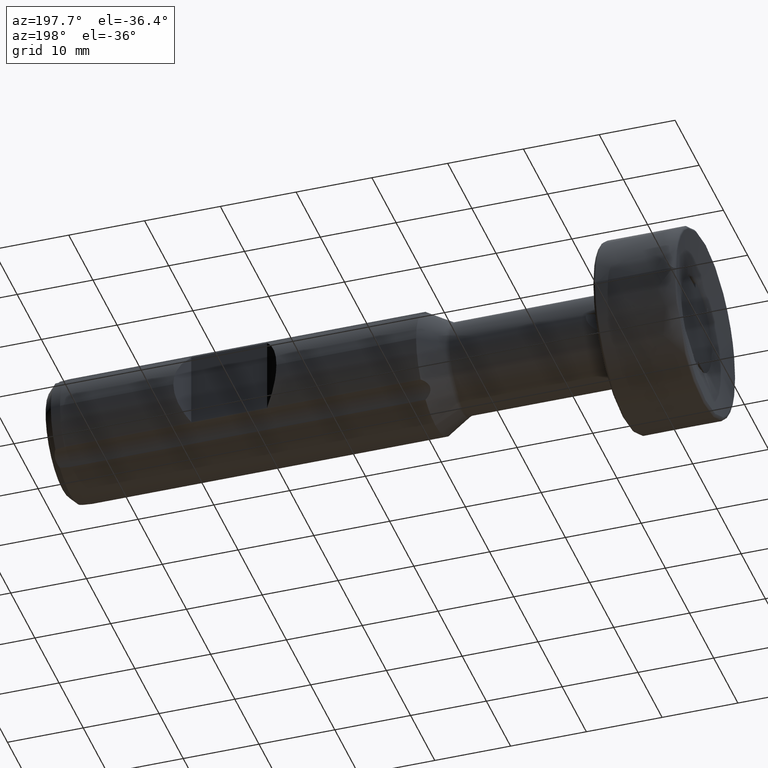
[diagram: clean part render]
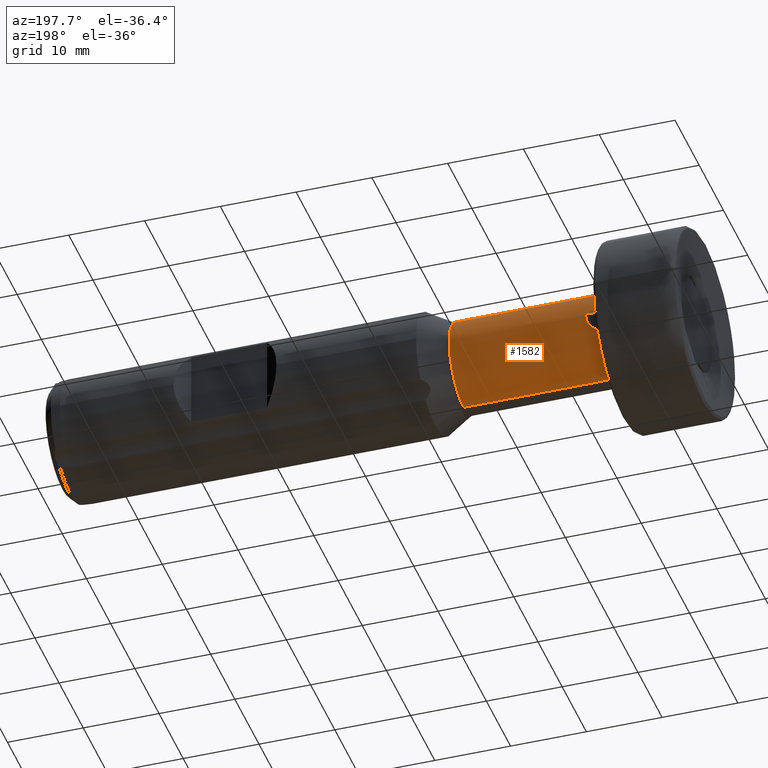
[diagram: same view with one face highlighted and labeled with its STEP entity id]
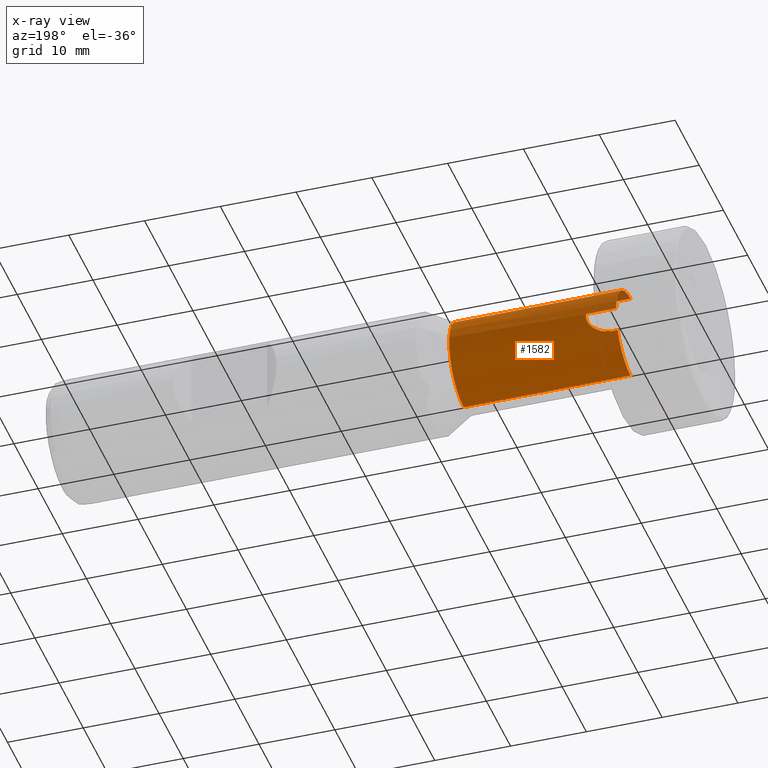
[diagram: x-ray of the same camera — body ghosted, the highlighted face saturated]
A machine part, auxiliary view. The second image highlights one B-rep face of the part: STEP entity #1582.
The next image is the same camera in x-ray: the body ghosted, the highlighted face saturated — about 1% of this face is hidden behind the body in this view.
In plain terms, the highlighted cylindrical surface (partial cylindrical patch) has radius 6 mm, axis along (1, -0, -0).
Its self-contained STEP definition (entity closure, byte-faithful):
#19 = ORIENTED_EDGE ( 'NONE', *, *, #2021, .F. ) ;
#116 = VERTEX_POINT ( 'NONE', #1385 ) ;
#155 = CARTESIAN_POINT ( 'NONE',  ( -70.97641165352884200, 6.002374430603293100, -0.1353808038549289000 ) ) ;
#255 = EDGE_LOOP ( 'NONE', ( #3402, #3124, #3533, #1035, #930, #3103, #19, #1630 ) ) ;
#392 = CARTESIAN_POINT ( 'NONE',  ( -74.98660728776361900, 5.992495306631448100, 0.2999999999999581300 ) ) ;
#460 = CARTESIAN_POINT ( 'NONE',  ( -71.11100491888758800, 5.952877084913744500, -0.7760946303427039800 ) ) ;
#471 = CIRCLE ( 'NONE', #2428, 5.999999999999991100 ) ;
#516 = LINE ( 'NONE', #1079, #2012 ) ;
#599 = DIRECTION ( 'NONE',  ( -1.000000000000000000, 0.0000000000000000000, 0.0000000000000000000 ) ) ;
#630 = CARTESIAN_POINT ( 'NONE',  ( 0.0000000000000000000, 0.0000000000000000000, 0.0000000000000000000 ) ) ;
#636 = DIRECTION ( 'NONE',  ( -1.000000000000000000, 0.0000000000000000000, 0.0000000000000000000 ) ) ;
#637 = CARTESIAN_POINT ( 'NONE',  ( 0.0000000000000000000, 0.0000000000000000000, -5.999999999999992000 ) ) ;
#697 = LINE ( 'NONE', #637, #1499 ) ;
#774 = CARTESIAN_POINT ( 'NONE',  ( -71.41620961329570600, 5.849012756698087400, -1.348068351324362300 ) ) ;
#911 = CARTESIAN_POINT ( 'NONE',  ( 8.685390255262215900E-016, 5.372999999999961100, -2.670369075614891700 ) ) ;
#930 = ORIENTED_EDGE ( 'NONE', *, *, #2360, .T. ) ;
#941 = LINE ( 'NONE', #911, #1633 ) ;
#1035 = ORIENTED_EDGE ( 'NONE', *, *, #1689, .F. ) ;
#1064 = CARTESIAN_POINT ( 'NONE',  ( -71.85444043811347100, 5.719017731908861500, -1.819491340447865400 ) ) ;
#1079 = CARTESIAN_POINT ( 'NONE',  ( 0.0000000000000000000, 7.347880794884109900E-016, 5.999999999999992000 ) ) ;
#1206 = CARTESIAN_POINT ( 'NONE',  ( -52.96794919243112100, 7.347880794884109900E-016, 5.999999999999992000 ) ) ;
#1223 = DIRECTION ( 'NONE',  ( 0.0000000000000000000, 0.0000000000000000000, -1.000000000000000000 ) ) ;
#1337 = DIRECTION ( 'NONE',  ( 1.000000000000000000, -0.0000000000000000000, -0.0000000000000000000 ) ) ;
#1359 = CARTESIAN_POINT ( 'NONE',  ( -70.97365246580812900, 6.003421700235310100, 0.08174545870138451300 ) ) ;
#1377 = CARTESIAN_POINT ( 'NONE',  ( -72.76730370723184600, 5.509923737840209900, -2.378521444080011100 ) ) ;
#1385 = CARTESIAN_POINT ( 'NONE',  ( -71.00323269228373100, 5.992495306631446400, 0.2999999999999581300 ) ) ;
#1427 = CARTESIAN_POINT ( 'NONE',  ( -74.98660728776361900, 7.347880794884109900E-016, 5.999999999999991100 ) ) ;
#1499 = VECTOR ( 'NONE', #3118, 1000.000000000000000 ) ;
#1501 = VERTEX_POINT ( 'NONE', #1206 ) ;
#1550 = DIRECTION ( 'NONE',  ( -1.000000000000000000, 0.0000000000000000000, 0.0000000000000000000 ) ) ;
#1582 = ADVANCED_FACE ( 'NONE', ( #2439 ), #2369, .T. ) ;
#1617 = VERTEX_POINT ( 'NONE', #2713 ) ;
#1630 = ORIENTED_EDGE ( 'NONE', *, *, #2499, .T. ) ;
#1633 = VECTOR ( 'NONE', #599, 1000.000000000000000 ) ;
#1662 = CARTESIAN_POINT ( 'NONE',  ( -74.02998450701758800, 5.372999999999968200, -2.670369075614876100 ) ) ;
#1689 = EDGE_CURVE ( 'NONE', #1617, #2004, #697, .T. ) ;
#1788 = DIRECTION ( 'NONE',  ( 1.000000000000000000, -0.0000000000000000000, -0.0000000000000000000 ) ) ;
#1802 = DIRECTION ( 'NONE',  ( 1.000000000000000000, -0.0000000000000000000, -0.0000000000000000000 ) ) ;
#1915 = EDGE_CURVE ( 'NONE', #1501, #2004, #3509, .T. ) ;
#1974 = LINE ( 'NONE', #2400, #2670 ) ;
#2004 = VERTEX_POINT ( 'NONE', #2488 ) ;
#2012 = VECTOR ( 'NONE', #3799, 1000.000000000000000 ) ;
#2021 = EDGE_CURVE ( 'NONE', #116, #2588, #2827, .T. ) ;
#2095 = EDGE_CURVE ( 'NONE', #2167, #1501, #516, .T. ) ;
#2137 = AXIS2_PLACEMENT_3D ( 'NONE', #3104, #1337, #3424 ) ;
#2167 = VERTEX_POINT ( 'NONE', #1427 ) ;
#2249 = CARTESIAN_POINT ( 'NONE',  ( -71.04520356352892900, 5.977027061562460600, -0.5674277685860877900 ) ) ;
#2292 = EDGE_CURVE ( 'NONE', #2588, #3142, #941, .T. ) ;
#2353 = CIRCLE ( 'NONE', #2137, 5.999999999999991100 ) ;
#2360 = EDGE_CURVE ( 'NONE', #1617, #3142, #471, .T. ) ;
#2369 = CYLINDRICAL_SURFACE ( 'NONE', #3261, 5.999999999999992000 ) ;
#2400 = CARTESIAN_POINT ( 'NONE',  ( 0.0000000000000000000, 5.992495306631447200, 0.2999999999999581300 ) ) ;
#2428 = AXIS2_PLACEMENT_3D ( 'NONE', #3580, #1788, #3888 ) ;
#2439 = FACE_OUTER_BOUND ( 'NONE', #255, .T. ) ;
#2488 = CARTESIAN_POINT ( 'NONE',  ( -52.96794919243112100, 0.0000000000000000000, -5.999999999999992000 ) ) ;
#2499 = EDGE_CURVE ( 'NONE', #116, #3421, #1974, .T. ) ;
#2540 = CARTESIAN_POINT ( 'NONE',  ( -71.29626307475548700, 5.888892355376617300, -1.166196934537541400 ) ) ;
#2583 = AXIS2_PLACEMENT_3D ( 'NONE', #3335, #1550, #3650 ) ;
#2588 = VERTEX_POINT ( 'NONE', #3621 ) ;
#2670 = VECTOR ( 'NONE', #636, 1000.000000000000000 ) ;
#2713 = CARTESIAN_POINT ( 'NONE',  ( -74.98660728776361900, 0.0000000000000000000, -5.999999999999991100 ) ) ;
#2827 = B_SPLINE_CURVE_WITH_KNOTS ( 'NONE', 3,
 ( #3440, #1359, #155, #2249, #460, #2540, #774, #2841, #1064, #3138, #1377, #3458, #1662, #3770 ),
 .UNSPECIFIED., .F., .F.,
 ( 4, 2, 2, 2, 2, 2, 4 ),
 ( 1.463672932855431000E-018, 0.0006513199330909027500, 0.001302639866181804000, 0.001953959799272704800, 0.002605279732363606200, 0.003907919598545408700, 0.005210559464727211600 ),
 .UNSPECIFIED. ) ;
#2841 = CARTESIAN_POINT ( 'NONE',  ( -71.69409831445482000, 5.764391939710680600, -1.673327246314327400 ) ) ;
#2972 = CARTESIAN_POINT ( 'NONE',  ( -74.98660728776361900, 5.372999999999961100, -2.670369075614891700 ) ) ;
#3103 = ORIENTED_EDGE ( 'NONE', *, *, #2292, .F. ) ;
#3104 = CARTESIAN_POINT ( 'NONE',  ( -74.98660728776361900, 0.0000000000000000000, 0.0000000000000000000 ) ) ;
#3118 = DIRECTION ( 'NONE',  ( 1.000000000000000000, -0.0000000000000000000, -0.0000000000000000000 ) ) ;
#3124 = ORIENTED_EDGE ( 'NONE', *, *, #2095, .T. ) ;
#3138 = CARTESIAN_POINT ( 'NONE',  ( -72.36840571765068800, 5.589563179837314900, -2.197187675647710700 ) ) ;
#3142 = VERTEX_POINT ( 'NONE', #2972 ) ;
#3261 = AXIS2_PLACEMENT_3D ( 'NONE', #630, #1802, #1223 ) ;
#3335 = CARTESIAN_POINT ( 'NONE',  ( -52.96794919243112100, 0.0000000000000000000, 0.0000000000000000000 ) ) ;
#3402 = ORIENTED_EDGE ( 'NONE', *, *, #3762, .T. ) ;
#3421 = VERTEX_POINT ( 'NONE', #392 ) ;
#3424 = DIRECTION ( 'NONE',  ( 0.0000000000000000000, 0.0000000000000000000, -1.000000000000000000 ) ) ;
#3440 = CARTESIAN_POINT ( 'NONE',  ( -71.00323269228373100, 5.992495306631446400, 0.2999999999999581300 ) ) ;
#3458 = CARTESIAN_POINT ( 'NONE',  ( -73.59316237180718200, 5.402660865266886600, -2.613021131119519500 ) ) ;
#3509 = CIRCLE ( 'NONE', #2583, 5.999999999999992000 ) ;
#3533 = ORIENTED_EDGE ( 'NONE', *, *, #1915, .T. ) ;
#3580 = CARTESIAN_POINT ( 'NONE',  ( -74.98660728776361900, 0.0000000000000000000, 0.0000000000000000000 ) ) ;
#3621 = CARTESIAN_POINT ( 'NONE',  ( -74.46821922872089800, 5.372999999999973600, -2.670369075614891700 ) ) ;
#3650 = DIRECTION ( 'NONE',  ( 0.0000000000000000000, 0.0000000000000000000, -1.000000000000000000 ) ) ;
#3762 = EDGE_CURVE ( 'NONE', #3421, #2167, #2353, .T. ) ;
#3770 = CARTESIAN_POINT ( 'NONE',  ( -74.46821922872089800, 5.372999999999973600, -2.670369075614891700 ) ) ;
#3799 = DIRECTION ( 'NONE',  ( 1.000000000000000000, -0.0000000000000000000, -0.0000000000000000000 ) ) ;
#3888 = DIRECTION ( 'NONE',  ( 0.0000000000000000000, 0.0000000000000000000, -1.000000000000000000 ) ) ;